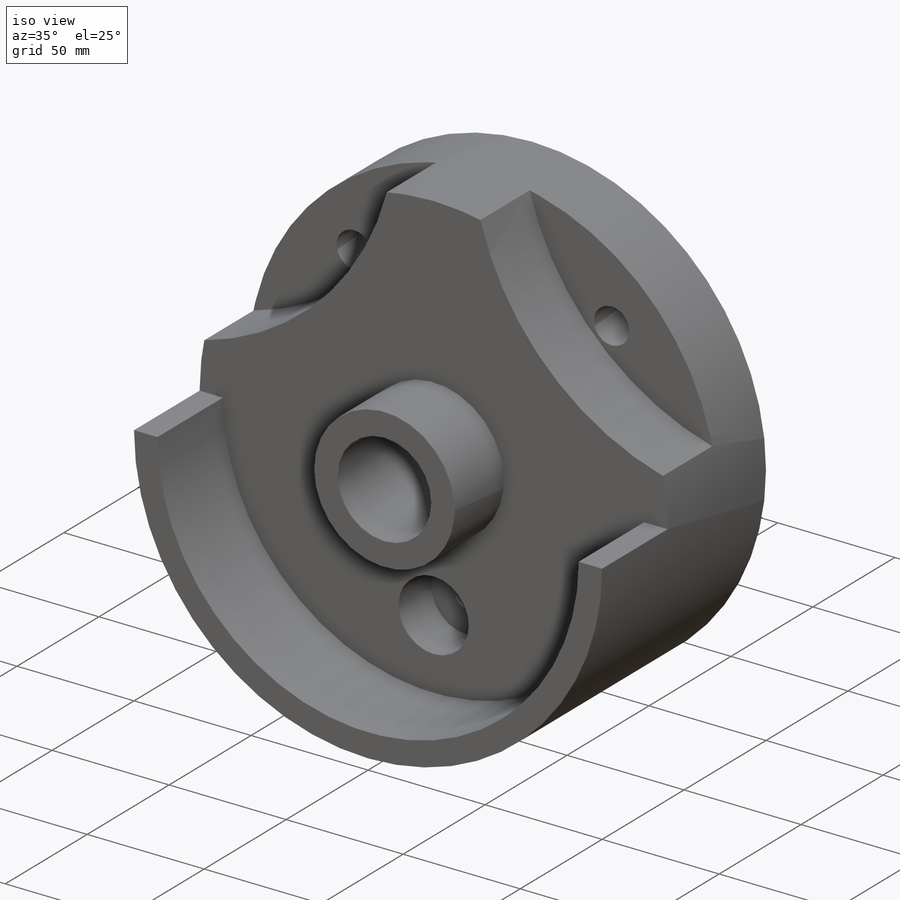
[diagram: iso view]
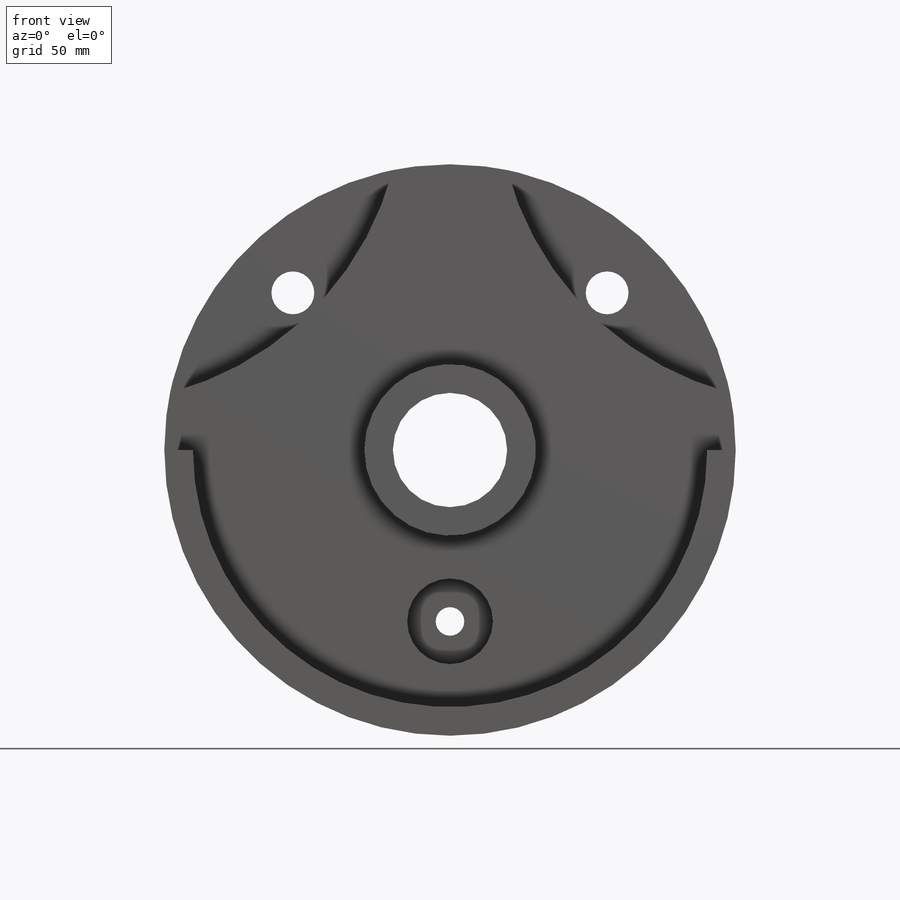
[diagram: front view]
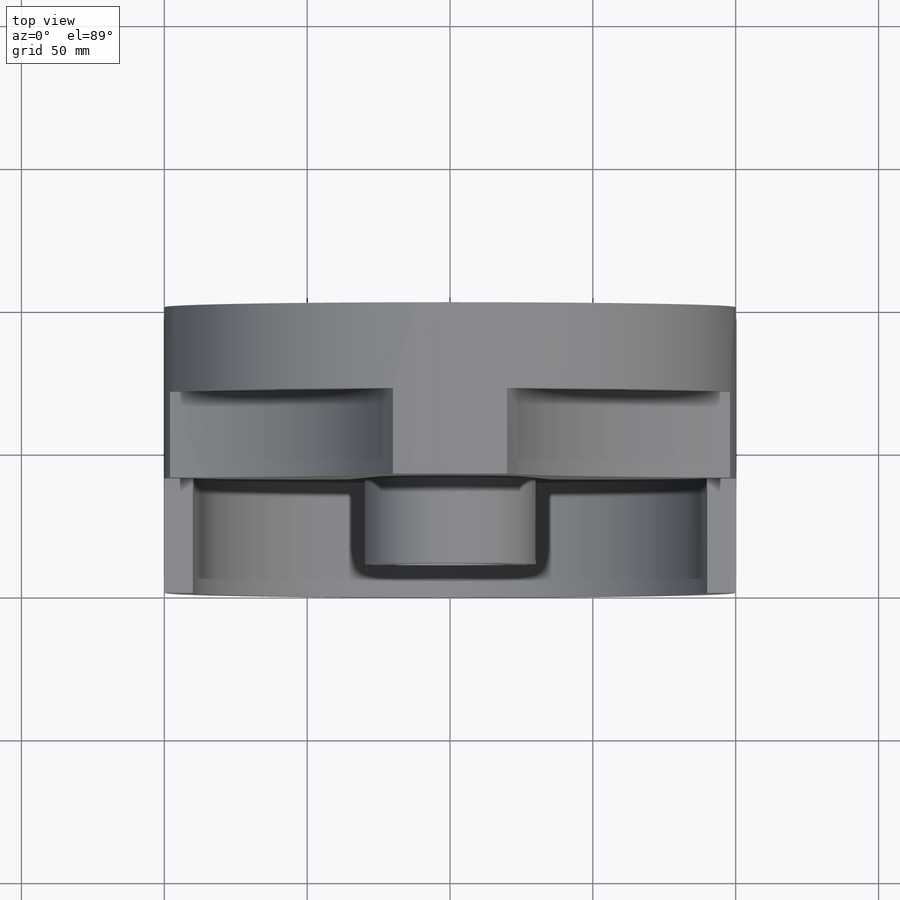
[diagram: top view]
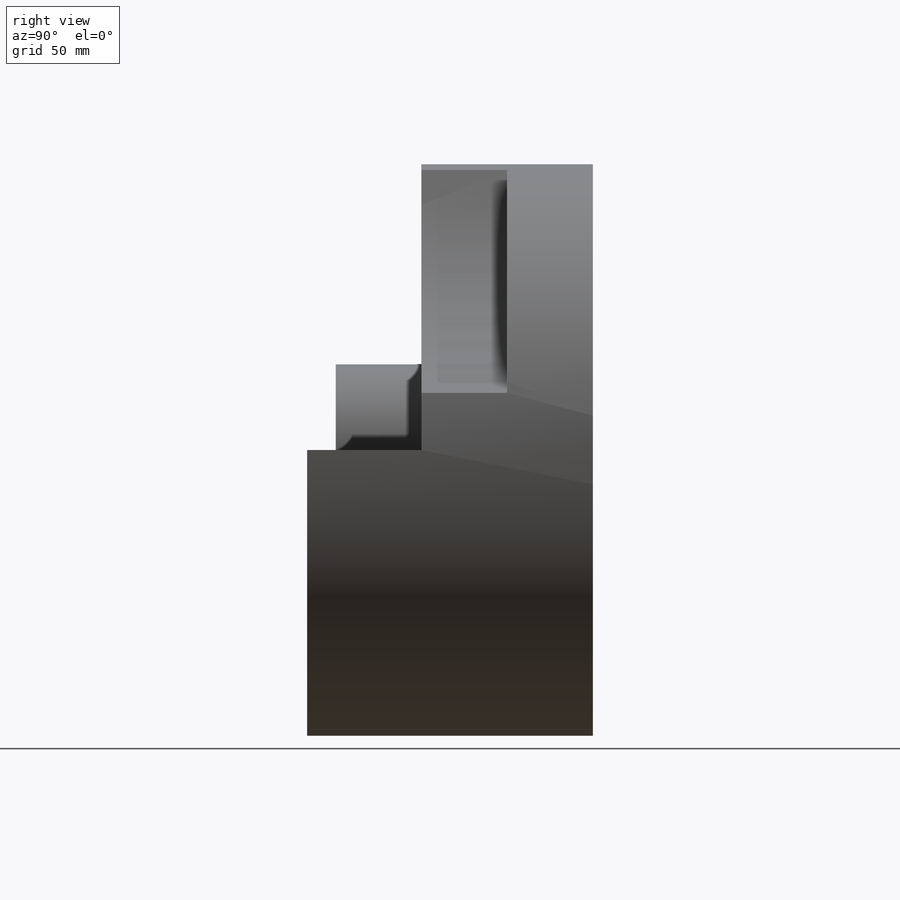
[diagram: right view]
SOLIDWORKS PART (.sldprt)
format: sldprt  version: not decoded by parser v0  size: 281,600 bytes
history: native  units: mm
features: sketch x11, cut_extrude x8, extrude x3, material x1, plane x1 (+13 scaffold rows collapsed)
feature tree (37):
  scaffold x13  (default folders/planes/origin — collapsed)
  material  "Material <not specified>"
  sketch  "Sketch1"  dims[D1=200.0mm]
  extrude  "Boss-Extrude1"  Depth=100mm
  sketch  "Sketch3"  dims[D1=15.0mm D2=15.0mm D3=55.0mm D4=55.0mm D5=55.0mm D6=55.0mm]
  cut_extrude  "Cut-Extrude2"  Depth=30mm
  sketch  "Sketch4"  dims[c1.D3=~79.019941mm c1.D4=110.0mm c1.D5=110.0mm c1.D1=20.0mm c1.D2=20.0mm c2.D3=20.0mm c2.D6=20.0mm]
  cut_extrude  "Cut-Extrude3"  Depth=70mm
  plane  "Plane1"  Offset=60mm
  sketch  "Sketch5"  dims[D1=100.0mm D2=100.0mm D3=100.0mm D4=100.0mm]
  cut_extrude  "Cut-Extrude4"  Depth=70mm
  sketch  "Sketch6"  dims[D3=90.0mm D1=10.0mm D2=10.0mm D4=90.0mm]
  extrude  "Boss-Extrude2"  Depth=40mm
  sketch  "Sketch7"  dims[D1=30.0mm D2=60.0mm D3=90.0mm]
  cut_extrude  "Cut-Extrude5"  Depth=20mm
  sketch  "Sketch8"  dims[D1=10.0mm]
  cut_extrude  "Cut-Extrude6"  Depth=89mm
  sketch  "Sketch9"  dims[D1=50.0mm]
  cut_extrude  "Cut-Extrude7"  Depth=20mm
  sketch  "Sketch10"  dims[D1=60.0mm]
  extrude  "Boss-Extrude4"  Depth=30mm
  sketch  "Sketch12"  dims[D1=40.0mm]
  cut_extrude  "Cut-Extrude9"  Depth=50mm
  sketch  "Sketch13"  dims[D1=40.0mm]
  cut_extrude  "Cut-Extrude10"  Depth=50mm
decode coverage: 22 of 22 modeling features carry decoded parameters
note: ~ marks probable driven/reference dimensions
note: suppression state not decoded; provenance and decode notes live in map.json
